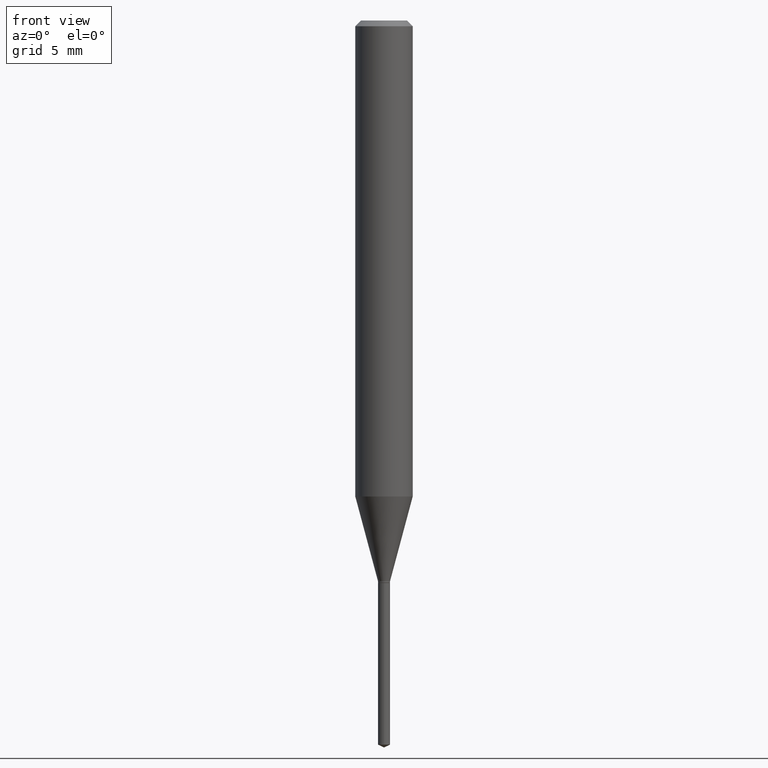
[diagram: clean part render]
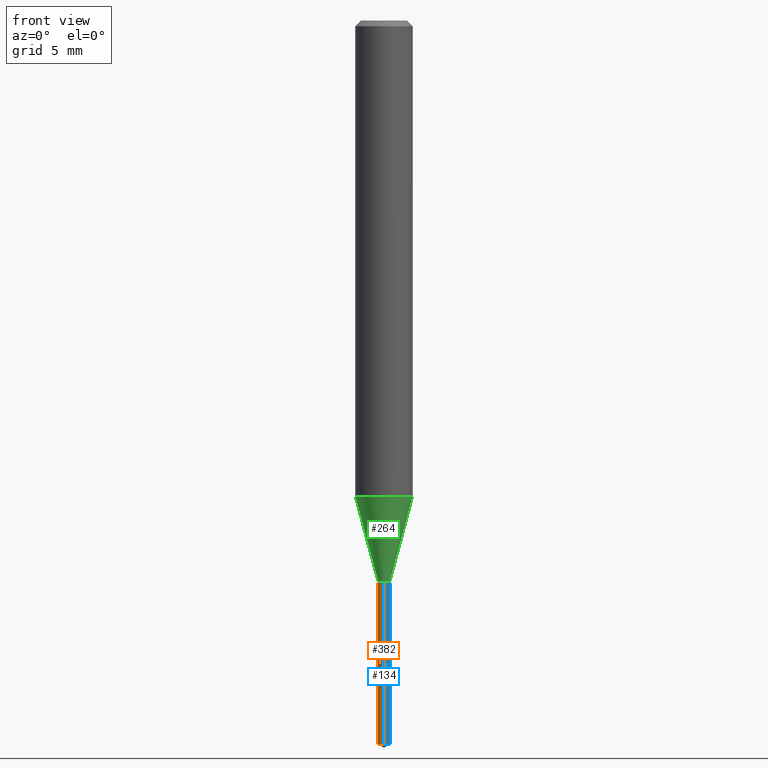
[diagram: same view with three faces highlighted in distinct colors, each labeled with its STEP entity id]
A machine part, front view with three faces highlighted in distinct colors.
Their STEP definitions:

[orange] entity #382 — the highlighted cylindrical surface (edge-blend (fillet) strip) has radius 0.315 mm, axis along (-0, 0, 1).
#6 = CARTESIAN_POINT ( 'NONE',  ( 8.810729923428890477E-17, 0.01239999999999595766, -1.157499999999999973 ) ) ;
#28 = VERTEX_POINT ( 'NONE', #102 ) ;
#29 = EDGE_CURVE ( 'NONE', #236, #83, #248, .T. ) ;
#40 = DIRECTION ( 'NONE',  ( -6.982962677686265922E-15, -1.000000000000000000, 0.000000000000000000 ) ) ;
#53 = ORIENTED_EDGE ( 'NONE', *, *, #472, .T. ) ;
#56 = LINE ( 'NONE', #367, #98 ) ;
#83 = VERTEX_POINT ( 'NONE', #106 ) ;
#98 = VECTOR ( 'NONE', #253, 39.37007874015748143 ) ;
#102 = CARTESIAN_POINT ( 'NONE',  ( -8.658873720328138277E-17, -0.01240000000000404147, -1.157499999999999973 ) ) ;
#104 = EDGE_LOOP ( 'NONE', ( #282, #209, #53, #211 ) ) ;
#106 = CARTESIAN_POINT ( 'NONE',  ( -8.658873720327323531E-17, -0.01240000000000520200, -1.490317785038878018 ) ) ;
#122 = CARTESIAN_POINT ( 'NONE',  ( 2.830630143159295633E-29, -4.041389649710940900E-15, -1.157499999999999973 ) ) ;
#126 = CYLINDRICAL_SURFACE ( 'NONE', #139, 0.01239999999999999956 ) ;
#128 = CIRCLE ( 'NONE', #381, 0.01239999999999999956 ) ;
#139 = AXIS2_PLACEMENT_3D ( 'NONE', #122, #269, #40 ) ;
#157 = VERTEX_POINT ( 'NONE', #6 ) ;
#160 = DIRECTION ( 'NONE',  ( -2.443412120811339220E-29, 3.494426629357685076E-15, 1.000000000000000000 ) ) ;
#166 = LINE ( 'NONE', #231, #372 ) ;
#205 = FACE_OUTER_BOUND ( 'NONE', #104, .T. ) ;
#209 = ORIENTED_EDGE ( 'NONE', *, *, #29, .T. ) ;
#211 = ORIENTED_EDGE ( 'NONE', *, *, #373, .F. ) ;
#231 = CARTESIAN_POINT ( 'NONE',  ( 8.810729923428072034E-17, 0.01239999999999595766, -1.157499999999999973 ) ) ;
#236 = VERTEX_POINT ( 'NONE', #266 ) ;
#248 = CIRCLE ( 'NONE', #280, 0.01239999999999999956 ) ;
#253 = DIRECTION ( 'NONE',  ( -2.443412120811338940E-29, 3.494426629357684682E-15, 1.000000000000000000 ) ) ;
#266 = CARTESIAN_POINT ( 'NONE',  ( 8.810729923428884314E-17, 0.01239999999999479192, -1.490317785038878018 ) ) ;
#269 = DIRECTION ( 'NONE',  ( -2.443412120811339220E-29, 3.494426629357685076E-15, 1.000000000000000000 ) ) ;
#273 = CARTESIAN_POINT ( 'NONE',  ( 2.830630143159295633E-29, -4.041389649710940900E-15, -1.157499999999999973 ) ) ;
#280 = AXIS2_PLACEMENT_3D ( 'NONE', #299, #328, #487 ) ;
#282 = ORIENTED_EDGE ( 'NONE', *, *, #331, .F. ) ;
#299 = CARTESIAN_POINT ( 'NONE',  ( 3.643841153144872301E-29, -5.204396980474637563E-15, -1.490317785038878018 ) ) ;
#328 = DIRECTION ( 'NONE',  ( -2.443412120811339220E-29, 3.494426629357685076E-15, 1.000000000000000000 ) ) ;
#331 = EDGE_CURVE ( 'NONE', #236, #157, #166, .T. ) ;
#367 = CARTESIAN_POINT ( 'NONE',  ( -8.658873720328138277E-17, -0.01240000000000404147, -1.157499999999999973 ) ) ;
#372 = VECTOR ( 'NONE', #461, 39.37007874015748143 ) ;
#373 = EDGE_CURVE ( 'NONE', #157, #28, #128, .T. ) ;
#381 = AXIS2_PLACEMENT_3D ( 'NONE', #273, #160, #429 ) ;
#382 = ADVANCED_FACE ( 'NONE', ( #205 ), #126, .T. ) ;
#429 = DIRECTION ( 'NONE',  ( -6.982962677686265922E-15, -1.000000000000000000, 0.000000000000000000 ) ) ;
#461 = DIRECTION ( 'NONE',  ( -2.443412120811338940E-29, 3.494426629357684682E-15, 1.000000000000000000 ) ) ;
#472 = EDGE_CURVE ( 'NONE', #83, #28, #56, .T. ) ;
#487 = DIRECTION ( 'NONE',  ( -6.982962677686265922E-15, -1.000000000000000000, 0.000000000000000000 ) ) ;

[blue] entity #134 — the highlighted cylindrical surface (edge-blend (fillet) strip) has radius 0.315 mm, axis along (-0, 0, 1).
#6 = CARTESIAN_POINT ( 'NONE',  ( 8.810729923428890477E-17, 0.01239999999999595766, -1.157499999999999973 ) ) ;
#8 = DIRECTION ( 'NONE',  ( -6.982962677686265922E-15, -1.000000000000000000, 0.000000000000000000 ) ) ;
#15 = DIRECTION ( 'NONE',  ( -2.443412120811339220E-29, 3.494426629357685076E-15, 1.000000000000000000 ) ) ;
#28 = VERTEX_POINT ( 'NONE', #102 ) ;
#37 = DIRECTION ( 'NONE',  ( -6.982962677686265922E-15, -1.000000000000000000, 0.000000000000000000 ) ) ;
#44 = DIRECTION ( 'NONE',  ( -6.982962677686265922E-15, -1.000000000000000000, 0.000000000000000000 ) ) ;
#46 = CIRCLE ( 'NONE', #101, 0.01239999999999999956 ) ;
#55 = ORIENTED_EDGE ( 'NONE', *, *, #350, .F. ) ;
#56 = LINE ( 'NONE', #367, #98 ) ;
#82 = DIRECTION ( 'NONE',  ( -2.443412120811339220E-29, 3.494426629357685076E-15, 1.000000000000000000 ) ) ;
#83 = VERTEX_POINT ( 'NONE', #106 ) ;
#84 = ORIENTED_EDGE ( 'NONE', *, *, #396, .T. ) ;
#98 = VECTOR ( 'NONE', #253, 39.37007874015748143 ) ;
#101 = AXIS2_PLACEMENT_3D ( 'NONE', #467, #15, #8 ) ;
#102 = CARTESIAN_POINT ( 'NONE',  ( -8.658873720328138277E-17, -0.01240000000000404147, -1.157499999999999973 ) ) ;
#106 = CARTESIAN_POINT ( 'NONE',  ( -8.658873720327323531E-17, -0.01240000000000520200, -1.490317785038878018 ) ) ;
#134 = ADVANCED_FACE ( 'NONE', ( #459 ), #153, .T. ) ;
#153 = CYLINDRICAL_SURFACE ( 'NONE', #192, 0.01239999999999999956 ) ;
#157 = VERTEX_POINT ( 'NONE', #6 ) ;
#166 = LINE ( 'NONE', #231, #372 ) ;
#170 = ORIENTED_EDGE ( 'NONE', *, *, #331, .T. ) ;
#192 = AXIS2_PLACEMENT_3D ( 'NONE', #453, #421, #37 ) ;
#231 = CARTESIAN_POINT ( 'NONE',  ( 8.810729923428072034E-17, 0.01239999999999595766, -1.157499999999999973 ) ) ;
#236 = VERTEX_POINT ( 'NONE', #266 ) ;
#253 = DIRECTION ( 'NONE',  ( -2.443412120811338940E-29, 3.494426629357684682E-15, 1.000000000000000000 ) ) ;
#266 = CARTESIAN_POINT ( 'NONE',  ( 8.810729923428884314E-17, 0.01239999999999479192, -1.490317785038878018 ) ) ;
#309 = CIRCLE ( 'NONE', #412, 0.01239999999999999956 ) ;
#317 = EDGE_LOOP ( 'NONE', ( #84, #170, #55, #379 ) ) ;
#320 = CARTESIAN_POINT ( 'NONE',  ( 3.643841153144872301E-29, -5.204396980474637563E-15, -1.490317785038878018 ) ) ;
#331 = EDGE_CURVE ( 'NONE', #236, #157, #166, .T. ) ;
#350 = EDGE_CURVE ( 'NONE', #28, #157, #46, .T. ) ;
#367 = CARTESIAN_POINT ( 'NONE',  ( -8.658873720328138277E-17, -0.01240000000000404147, -1.157499999999999973 ) ) ;
#372 = VECTOR ( 'NONE', #461, 39.37007874015748143 ) ;
#379 = ORIENTED_EDGE ( 'NONE', *, *, #472, .F. ) ;
#396 = EDGE_CURVE ( 'NONE', #83, #236, #309, .T. ) ;
#412 = AXIS2_PLACEMENT_3D ( 'NONE', #320, #82, #44 ) ;
#421 = DIRECTION ( 'NONE',  ( -2.443412120811339220E-29, 3.494426629357685076E-15, 1.000000000000000000 ) ) ;
#453 = CARTESIAN_POINT ( 'NONE',  ( 2.830630143159295633E-29, -4.041389649710940900E-15, -1.157499999999999973 ) ) ;
#459 = FACE_OUTER_BOUND ( 'NONE', #317, .T. ) ;
#461 = DIRECTION ( 'NONE',  ( -2.443412120811338940E-29, 3.494426629357684682E-15, 1.000000000000000000 ) ) ;
#467 = CARTESIAN_POINT ( 'NONE',  ( 2.830630143159295633E-29, -4.041389649710940900E-15, -1.157499999999999973 ) ) ;
#472 = EDGE_CURVE ( 'NONE', #83, #28, #56, .T. ) ;

[green] entity #264 — the highlighted conical surface has half-angle 15 deg.
#33 = CONICAL_SURFACE ( 'NONE', #184, 0.01239999999999999956, 0.2617993877991500740 ) ;
#39 = VECTOR ( 'NONE', #349, 39.37007874015747433 ) ;
#58 = CARTESIAN_POINT ( 'NONE',  ( 0.05905000000000011628, -3.832947619625843003E-15, -0.9796998298269117278 ) ) ;
#66 = CIRCLE ( 'NONE', #158, 0.05905000000000011628 ) ;
#77 = EDGE_CURVE ( 'NONE', #480, #297, #291, .T. ) ;
#79 = CARTESIAN_POINT ( 'NONE',  ( 0.01239999999999999956, -4.115059905960530718E-15, -1.153799999999999937 ) ) ;
#80 = ORIENTED_EDGE ( 'NONE', *, *, #111, .F. ) ;
#81 = VERTEX_POINT ( 'NONE', #58 ) ;
#90 = VECTOR ( 'NONE', #285, 39.37007874015747433 ) ;
#95 = ORIENTED_EDGE ( 'NONE', *, *, #116, .F. ) ;
#111 = EDGE_CURVE ( 'NONE', #212, #81, #66, .T. ) ;
#116 = EDGE_CURVE ( 'NONE', #480, #212, #407, .T. ) ;
#133 = CARTESIAN_POINT ( 'NONE',  ( -0.01239999999999999956, -3.940363869522968799E-15, -1.153799999999999937 ) ) ;
#148 = CARTESIAN_POINT ( 'NONE',  ( 0.01239999999999999956, -4.115059905960530718E-15, -1.153799999999999937 ) ) ;
#151 = AXIS2_PLACEMENT_3D ( 'NONE', #451, #450, #449 ) ;
#158 = AXIS2_PLACEMENT_3D ( 'NONE', #409, #251, #257 ) ;
#169 = EDGE_CURVE ( 'NONE', #297, #81, #185, .T. ) ;
#184 = AXIS2_PLACEMENT_3D ( 'NONE', #340, #490, #300 ) ;
#185 = LINE ( 'NONE', #148, #39 ) ;
#212 = VERTEX_POINT ( 'NONE', #261 ) ;
#232 = EDGE_LOOP ( 'NONE', ( #95, #399, #475, #80 ) ) ;
#251 = DIRECTION ( 'NONE',  ( -2.445468806185136597E-29, 3.491481338843145583E-15, 1.000000000000000000 ) ) ;
#257 = DIRECTION ( 'NONE',  ( 1.000000000000000000, -6.982962677686266711E-15, 0.000000000000000000 ) ) ;
#261 = CARTESIAN_POINT ( 'NONE',  ( -0.05905000000000011628, -3.001028188042127801E-15, -0.9796998298269117278 ) ) ;
#264 = ADVANCED_FACE ( 'NONE', ( #306 ), #33, .T. ) ;
#285 = DIRECTION ( 'NONE',  ( -0.2588190451025213501, 5.211531920934551042E-15, 0.9659258262890682012 ) ) ;
#291 = CIRCLE ( 'NONE', #151, 0.01239999999999999956 ) ;
#296 = CARTESIAN_POINT ( 'NONE',  ( -0.01239999999999999956, -3.945950239665117611E-15, -1.153799999999999937 ) ) ;
#297 = VERTEX_POINT ( 'NONE', #79 ) ;
#300 = DIRECTION ( 'NONE',  ( 1.000000000000000000, -6.982962677686277755E-15, 0.000000000000000000 ) ) ;
#306 = FACE_OUTER_BOUND ( 'NONE', #232, .T. ) ;
#340 = CARTESIAN_POINT ( 'NONE',  ( 2.821581908576410135E-29, -4.028471168757220985E-15, -1.153799999999999937 ) ) ;
#349 = DIRECTION ( 'NONE',  ( 0.2588190451025213501, 1.565188264969621968E-15, 0.9659258262890682012 ) ) ;
#399 = ORIENTED_EDGE ( 'NONE', *, *, #77, .T. ) ;
#407 = LINE ( 'NONE', #133, #90 ) ;
#409 = CARTESIAN_POINT ( 'NONE',  ( 2.395825373266599197E-29, -3.420603673508467294E-15, -0.9796998298269117278 ) ) ;
#449 = DIRECTION ( 'NONE',  ( 1.000000000000000000, -6.982962677686277755E-15, 0.000000000000000000 ) ) ;
#450 = DIRECTION ( 'NONE',  ( -2.445468806185136597E-29, 3.491481338843145583E-15, 1.000000000000000000 ) ) ;
#451 = CARTESIAN_POINT ( 'NONE',  ( 2.821581908576410135E-29, -4.028471168757220985E-15, -1.153799999999999937 ) ) ;
#475 = ORIENTED_EDGE ( 'NONE', *, *, #169, .T. ) ;
#480 = VERTEX_POINT ( 'NONE', #296 ) ;
#490 = DIRECTION ( 'NONE',  ( -2.445468806185136597E-29, 3.491481338843145583E-15, 1.000000000000000000 ) ) ;